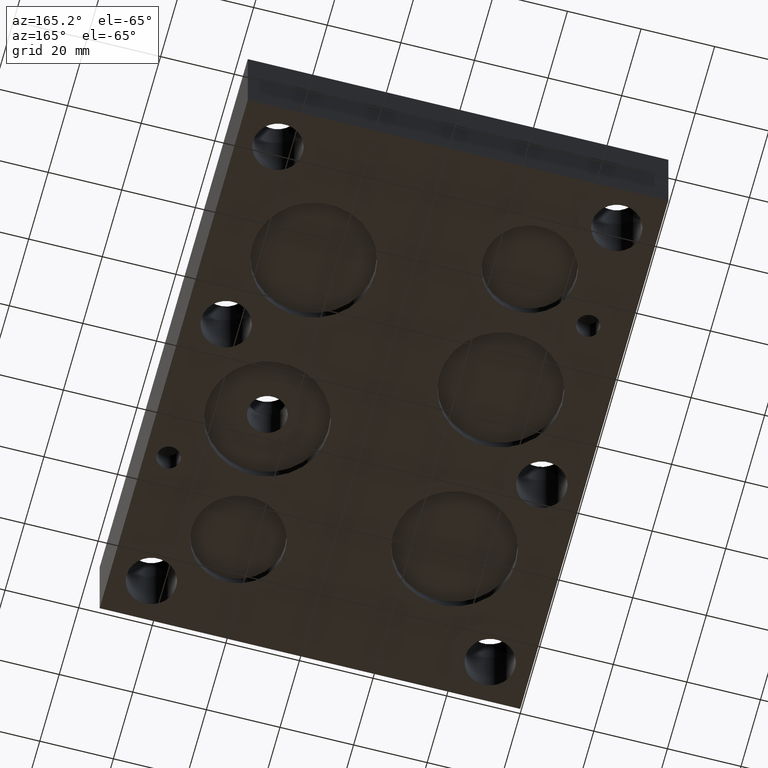
[diagram: clean part render]
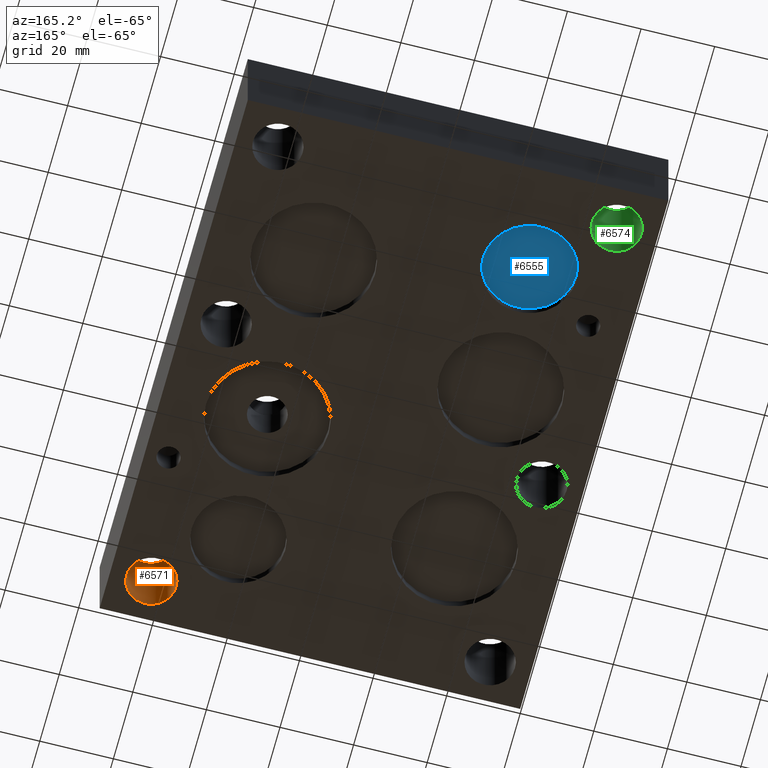
[diagram: same view with three faces highlighted in distinct colors, each labeled with its STEP entity id]
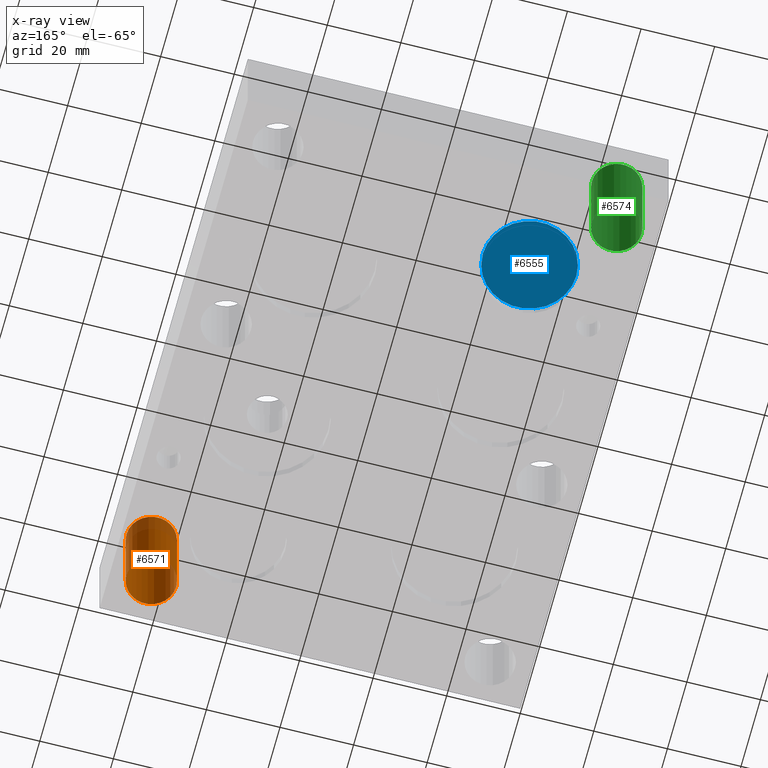
[diagram: x-ray of the same camera — body ghosted, the three highlighted faces saturated]
A machine part, auxiliary view with three faces highlighted in distinct colors.
The next image is the same camera in x-ray (body ghosted, the three faces saturated) — at least one of them is partly hidden behind the body in this view.
Their STEP definitions:

[orange] entity #6571 — the highlighted cylindrical surface (bore or boss wall) has radius 6.7437 mm, axis along (0, 0, -1).
#29=CYLINDRICAL_SURFACE('',#6883,0.2655);
#36=CIRCLE('',#6816,0.2655);
#82=CIRCLE('',#6884,0.2655);
#83=CIRCLE('',#6885,0.2655);
#576=FACE_OUTER_BOUND('',#957,.T.);
#957=EDGE_LOOP('',(#5934,#5935,#5936,#5937,#5938));
#1655=LINE('',#11691,#2338);
#2338=VECTOR('',#8143,0.2655);
#3128=VERTEX_POINT('',#11560);
#3176=VERTEX_POINT('',#11690);
#3177=VERTEX_POINT('',#11692);
#4051=EDGE_CURVE('',#3128,#3128,#36,.T.);
#4111=EDGE_CURVE('',#3128,#3176,#1655,.T.);
#4112=EDGE_CURVE('',#3177,#3176,#82,.T.);
#4113=EDGE_CURVE('',#3176,#3177,#83,.T.);
#5934=ORIENTED_EDGE('',*,*,#4051,.F.);
#5935=ORIENTED_EDGE('',*,*,#4111,.T.);
#5936=ORIENTED_EDGE('',*,*,#4112,.F.);
#5937=ORIENTED_EDGE('',*,*,#4113,.F.);
#5938=ORIENTED_EDGE('',*,*,#4111,.F.);
#6571=ADVANCED_FACE('',(#576),#29,.F.);
#6816=AXIS2_PLACEMENT_3D('',#11561,#7993,#7994);
#6883=AXIS2_PLACEMENT_3D('',#11689,#8141,#8142);
#6884=AXIS2_PLACEMENT_3D('',#11693,#8144,#8145);
#6885=AXIS2_PLACEMENT_3D('',#11694,#8146,#8147);
#7993=DIRECTION('center_axis',(0.,0.,-1.));
#7994=DIRECTION('ref_axis',(1.,0.,0.));
#8141=DIRECTION('center_axis',(0.,0.,-1.));
#8142=DIRECTION('ref_axis',(1.,0.,0.));
#8143=DIRECTION('',(0.,0.,-1.));
#8144=DIRECTION('center_axis',(0.,0.,1.));
#8145=DIRECTION('ref_axis',(1.,0.,0.));
#8146=DIRECTION('center_axis',(0.,0.,1.));
#8147=DIRECTION('ref_axis',(1.,0.,0.));
#11560=CARTESIAN_POINT('',(3.797,0.437,1.));
#11561=CARTESIAN_POINT('Origin',(4.0625,0.437,1.));
#11689=CARTESIAN_POINT('Origin',(4.0625,0.437,0.55));
#11690=CARTESIAN_POINT('',(3.797,0.437,0.));
#11691=CARTESIAN_POINT('',(3.797,0.437,0.55));
#11692=CARTESIAN_POINT('',(4.328,0.437,0.));
#11693=CARTESIAN_POINT('Origin',(4.0625,0.437,0.));
#11694=CARTESIAN_POINT('Origin',(4.0625,0.437,0.));

[blue] entity #6555 — the highlighted planar face has unit normal (0, 0, 1).
#50=CIRCLE('',#6836,0.5);
#51=CIRCLE('',#6837,0.5);
#560=FACE_OUTER_BOUND('',#940,.T.);
#940=EDGE_LOOP('',(#5863,#5864));
#3142=VERTEX_POINT('',#11597);
#3143=VERTEX_POINT('',#11598);
#4068=EDGE_CURVE('',#3142,#3143,#50,.T.);
#4069=EDGE_CURVE('',#3143,#3142,#51,.T.);
#5863=ORIENTED_EDGE('',*,*,#4068,.T.);
#5864=ORIENTED_EDGE('',*,*,#4069,.T.);
#6226=PLANE('',#6835);
#6555=ADVANCED_FACE('',(#560),#6226,.F.);
#6835=AXIS2_PLACEMENT_3D('',#11596,#8034,#8035);
#6836=AXIS2_PLACEMENT_3D('',#11599,#8036,#8037);
#6837=AXIS2_PLACEMENT_3D('',#11600,#8038,#8039);
#8034=DIRECTION('center_axis',(0.,0.,1.));
#8035=DIRECTION('ref_axis',(1.,0.,0.));
#8036=DIRECTION('center_axis',(0.,0.,-1.));
#8037=DIRECTION('ref_axis',(1.,0.,0.));
#8038=DIRECTION('center_axis',(0.,0.,-1.));
#8039=DIRECTION('ref_axis',(1.,0.,0.));
#11596=CARTESIAN_POINT('Origin',(1.438,4.875,0.11));
#11597=CARTESIAN_POINT('',(1.688,4.875,0.11));
#11598=CARTESIAN_POINT('',(0.688,4.875,0.11));
#11599=CARTESIAN_POINT('Origin',(1.188,4.875,0.11));
#11600=CARTESIAN_POINT('Origin',(1.188,4.875,0.11));

[green] entity #6574 — the highlighted cylindrical surface (bore or boss wall) has radius 6.7437 mm, axis along (0, 0, -1).
#32=CYLINDRICAL_SURFACE('',#6892,0.2655);
#33=CIRCLE('',#6813,0.2655);
#88=CIRCLE('',#6893,0.2655);
#89=CIRCLE('',#6894,0.2655);
#579=FACE_OUTER_BOUND('',#960,.T.);
#960=EDGE_LOOP('',(#5949,#5950,#5951,#5952,#5953));
#1658=LINE('',#11709,#2341);
#2341=VECTOR('',#8164,0.2655);
#3125=VERTEX_POINT('',#11554);
#3182=VERTEX_POINT('',#11708);
#3183=VERTEX_POINT('',#11710);
#4048=EDGE_CURVE('',#3125,#3125,#33,.T.);
#4120=EDGE_CURVE('',#3125,#3182,#1658,.T.);
#4121=EDGE_CURVE('',#3183,#3182,#88,.T.);
#4122=EDGE_CURVE('',#3182,#3183,#89,.T.);
#5949=ORIENTED_EDGE('',*,*,#4048,.F.);
#5950=ORIENTED_EDGE('',*,*,#4120,.T.);
#5951=ORIENTED_EDGE('',*,*,#4121,.F.);
#5952=ORIENTED_EDGE('',*,*,#4122,.F.);
#5953=ORIENTED_EDGE('',*,*,#4120,.F.);
#6574=ADVANCED_FACE('',(#579),#32,.F.);
#6813=AXIS2_PLACEMENT_3D('',#11555,#7987,#7988);
#6892=AXIS2_PLACEMENT_3D('',#11707,#8162,#8163);
#6893=AXIS2_PLACEMENT_3D('',#11711,#8165,#8166);
#6894=AXIS2_PLACEMENT_3D('',#11712,#8167,#8168);
#7987=DIRECTION('center_axis',(0.,0.,-1.));
#7988=DIRECTION('ref_axis',(1.,0.,0.));
#8162=DIRECTION('center_axis',(0.,0.,-1.));
#8163=DIRECTION('ref_axis',(1.,0.,0.));
#8164=DIRECTION('',(0.,0.,-1.));
#8165=DIRECTION('center_axis',(0.,0.,1.));
#8166=DIRECTION('ref_axis',(1.,0.,0.));
#8167=DIRECTION('center_axis',(0.,0.,1.));
#8168=DIRECTION('ref_axis',(1.,0.,0.));
#11554=CARTESIAN_POINT('',(0.1715,5.562,1.));
#11555=CARTESIAN_POINT('Origin',(0.437,5.562,1.));
#11707=CARTESIAN_POINT('Origin',(0.437,5.562,0.55));
#11708=CARTESIAN_POINT('',(0.1715,5.562,0.));
#11709=CARTESIAN_POINT('',(0.1715,5.562,0.55));
#11710=CARTESIAN_POINT('',(0.7025,5.562,0.));
#11711=CARTESIAN_POINT('Origin',(0.437,5.562,0.));
#11712=CARTESIAN_POINT('Origin',(0.437,5.562,0.));